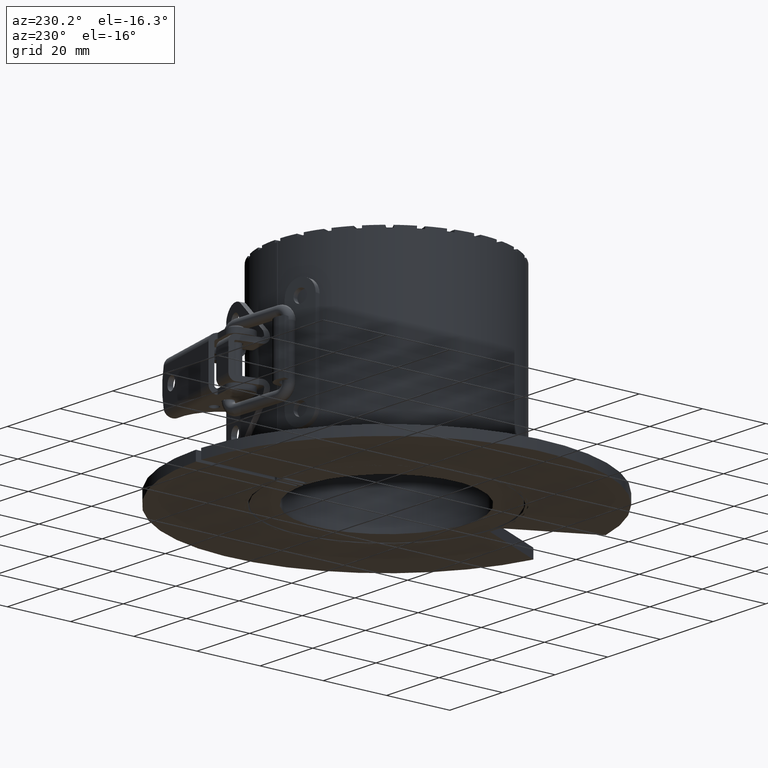
[diagram: clean part render]
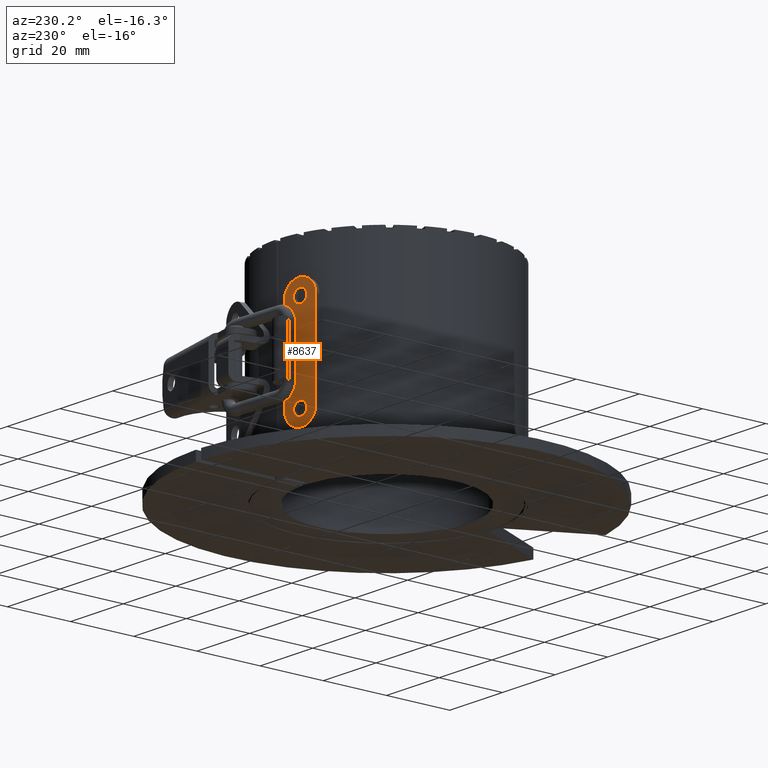
[diagram: same view with one face highlighted and labeled with its STEP entity id]
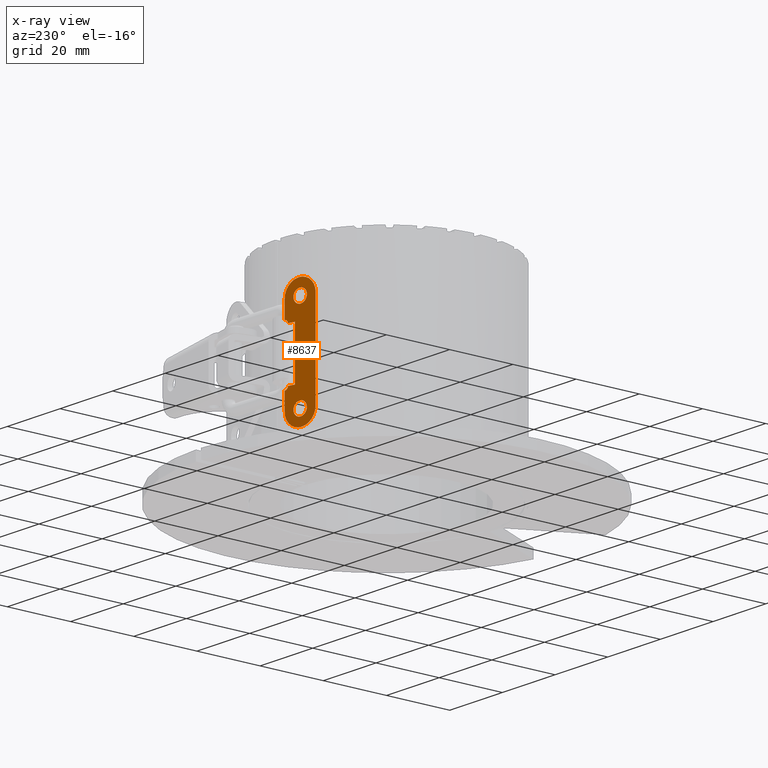
[diagram: x-ray of the same camera — body ghosted, the highlighted face saturated]
A machine part, auxiliary view. The second image highlights one B-rep face of the part: STEP entity #8637.
The next image is the same camera in x-ray: the body ghosted, the highlighted face saturated — about 0% of this face is hidden behind the body in this view.
In plain terms, the highlighted planar face has unit normal (-0.2212, 0.9752, 0).
Its self-contained STEP definition (entity closure, byte-faithful):
#8351=CARTESIAN_POINT('',(-4.509050561888564,35.99404757822758,-8.949999999999992));
#8352=VERTEX_POINT('',#8351);
#8353=CARTESIAN_POINT('',(-4.509050561888564,35.99404757822758,-14.299999999999997));
#8354=VERTEX_POINT('',#8353);
#8355=CARTESIAN_POINT('',(-4.509050561888564,35.99404757822758,-8.949999999999992));
#8356=DIRECTION('',(0.0,0.0,-1.0));
#8357=VECTOR('',#8356,5.350000000000003);
#8358=LINE('',#8355,#8357);
#8359=EDGE_CURVE('',#8352,#8354,#8358,.T.);
#8497=CARTESIAN_POINT('',(-13.77382607012178,33.893110934241861,-14.299999999999997));
#8498=VERTEX_POINT('',#8497);
#8505=CARTESIAN_POINT('',(-9.141438316005173,34.943579256234727,-14.299999999999997));
#8506=DIRECTION('',(-0.221151225682707,0.975239527182444,0.0));
#8507=DIRECTION('',(0.0,0.0,-1.0));
#8508=AXIS2_PLACEMENT_3D('',#8505,#8506,#8507);
#8509=CIRCLE('',#8508,4.750000000000002);
#8510=EDGE_CURVE('',#8354,#8498,#8509,.T.);
#8523=CARTESIAN_POINT('',(-5.484290089071009,35.772896352544883,-7.949999999999995));
#8524=VERTEX_POINT('',#8523);
#8525=CARTESIAN_POINT('',(-4.509050561888564,35.99404757822758,-7.949999999999995));
#8526=DIRECTION('',(-0.221151225682707,0.975239527182444,0.0));
#8527=DIRECTION('',(0.0,0.0,-1.0));
#8528=AXIS2_PLACEMENT_3D('',#8525,#8526,#8527);
#8529=CIRCLE('',#8528,0.999999999999999);
#8530=EDGE_CURVE('',#8352,#8524,#8529,.T.);
#8549=CARTESIAN_POINT('',(-9.141438316005173,34.943579256234727,-14.299999999999997));
#8550=DIRECTION('',(-0.221151225682707,0.975239527182444,1.117870E-016));
#8551=DIRECTION('',(0.0,0.0,-1.0));
#8552=AXIS2_PLACEMENT_3D('',#8549,#8550,#8551);
#8553=PLANE('',#8552);
#8554=CARTESIAN_POINT('',(-5.484290089071009,35.772896352544883,7.950000000000008));
#8555=VERTEX_POINT('',#8554);
#8556=CARTESIAN_POINT('',(-7.581055072513262,35.297421217327056,7.950000000000008));
#8557=VERTEX_POINT('',#8556);
#8558=CARTESIAN_POINT('',(-5.484290089071009,35.772896352544883,7.950000000000008));
#8559=DIRECTION('',(-0.975239527182444,-0.221151225682707,0.0));
#8560=VECTOR('',#8559,2.15);
#8561=LINE('',#8558,#8560);
#8562=EDGE_CURVE('',#8555,#8557,#8561,.T.);
#8563=ORIENTED_EDGE('',*,*,#8562,.T.);
#8564=CARTESIAN_POINT('',(-7.581055072513262,35.297421217327056,-7.949999999999995));
#8565=VERTEX_POINT('',#8564);
#8566=CARTESIAN_POINT('',(-7.581055072513262,35.297421217327056,-7.949999999999995));
#8567=DIRECTION('',(0.0,0.0,1.0));
#8568=VECTOR('',#8567,15.9);
#8569=LINE('',#8566,#8568);
#8570=EDGE_CURVE('',#8565,#8557,#8569,.T.);
#8571=ORIENTED_EDGE('',*,*,#8570,.F.);
#8572=CARTESIAN_POINT('',(-7.581055072513262,35.297421217327056,-7.949999999999995));
#8573=DIRECTION('',(0.975239527182444,0.221151225682707,0.0));
#8574=VECTOR('',#8573,2.15);
#8575=LINE('',#8572,#8574);
#8576=EDGE_CURVE('',#8565,#8524,#8575,.T.);
#8577=ORIENTED_EDGE('',*,*,#8576,.T.);
#8578=ORIENTED_EDGE('',*,*,#8530,.F.);
#8579=ORIENTED_EDGE('',*,*,#8359,.T.);
#8580=ORIENTED_EDGE('',*,*,#8510,.T.);
#8581=CARTESIAN_POINT('',(-13.773826070121782,33.893110934241854,14.300000000000006));
#8582=VERTEX_POINT('',#8581);
#8583=CARTESIAN_POINT('',(-13.77382607012178,33.893110934241861,-14.299999999999997));
#8584=DIRECTION('',(0.0,0.0,1.0));
#8585=VECTOR('',#8584,28.600000000000001);
#8586=LINE('',#8583,#8585);
#8587=EDGE_CURVE('',#8498,#8582,#8586,.T.);
#8588=ORIENTED_EDGE('',*,*,#8587,.T.);
#8589=CARTESIAN_POINT('',(-4.509050561888564,35.994047578227566,14.300000000000006));
#8590=VERTEX_POINT('',#8589);
#8591=CARTESIAN_POINT('',(-9.141438316005173,34.943579256234713,14.300000000000006));
#8592=DIRECTION('',(-0.221151225682707,0.975239527182444,0.0));
#8593=DIRECTION('',(0.0,0.0,1.0));
#8594=AXIS2_PLACEMENT_3D('',#8591,#8592,#8593);
#8595=CIRCLE('',#8594,4.750000000000002);
#8596=EDGE_CURVE('',#8582,#8590,#8595,.T.);
#8597=ORIENTED_EDGE('',*,*,#8596,.T.);
#8598=CARTESIAN_POINT('',(-4.509050561888564,35.99404757822758,8.950000000000005));
#8599=VERTEX_POINT('',#8598);
#8600=CARTESIAN_POINT('',(-4.509050561888564,35.994047578227566,14.300000000000006));
#8601=DIRECTION('',(0.0,0.0,-1.0));
#8602=VECTOR('',#8601,5.350000000000003);
#8603=LINE('',#8600,#8602);
#8604=EDGE_CURVE('',#8590,#8599,#8603,.T.);
#8605=ORIENTED_EDGE('',*,*,#8604,.T.);
#8606=CARTESIAN_POINT('',(-4.509050561888564,35.99404757822758,7.950000000000008));
#8607=DIRECTION('',(-0.221151225682707,0.975239527182444,0.0));
#8608=DIRECTION('',(0.0,0.0,-1.0));
#8609=AXIS2_PLACEMENT_3D('',#8606,#8607,#8608);
#8610=CIRCLE('',#8609,1.0);
#8611=EDGE_CURVE('',#8555,#8599,#8610,.T.);
#8612=ORIENTED_EDGE('',*,*,#8611,.F.);
#8613=EDGE_LOOP('',(#8563,#8571,#8577,#8578,#8579,#8580,#8588,#8597,#8605,#8612));
#8614=FACE_OUTER_BOUND('',#8613,.T.);
#8615=CARTESIAN_POINT('',(-9.141438316005173,34.943579256234727,-12.249999999999996));
#8616=VERTEX_POINT('',#8615);
#8617=CARTESIAN_POINT('',(-9.141438316005173,34.943579256234727,-14.299999999999997));
#8618=DIRECTION('',(-0.221151225682707,0.975239527182444,0.0));
#8619=DIRECTION('',(0.0,0.0,-1.0));
#8620=AXIS2_PLACEMENT_3D('',#8617,#8618,#8619);
#8621=CIRCLE('',#8620,2.05);
#8622=EDGE_CURVE('',#8616,#8616,#8621,.T.);
#8623=ORIENTED_EDGE('',*,*,#8622,.F.);
#8624=EDGE_LOOP('',(#8623));
#8625=FACE_BOUND('',#8624,.T.);
#8626=CARTESIAN_POINT('',(-9.141438316005173,34.943579256234713,16.350000000000009));
#8627=VERTEX_POINT('',#8626);
#8628=CARTESIAN_POINT('',(-9.141438316005173,34.943579256234713,14.300000000000006));
#8629=DIRECTION('',(-0.221151225682707,0.975239527182444,0.0));
#8630=DIRECTION('',(0.0,0.0,-1.0));
#8631=AXIS2_PLACEMENT_3D('',#8628,#8629,#8630);
#8632=CIRCLE('',#8631,2.05);
#8633=EDGE_CURVE('',#8627,#8627,#8632,.T.);
#8634=ORIENTED_EDGE('',*,*,#8633,.F.);
#8635=EDGE_LOOP('',(#8634));
#8636=FACE_BOUND('',#8635,.T.);
#8637=ADVANCED_FACE('',(#8614,#8625,#8636),#8553,.T.);